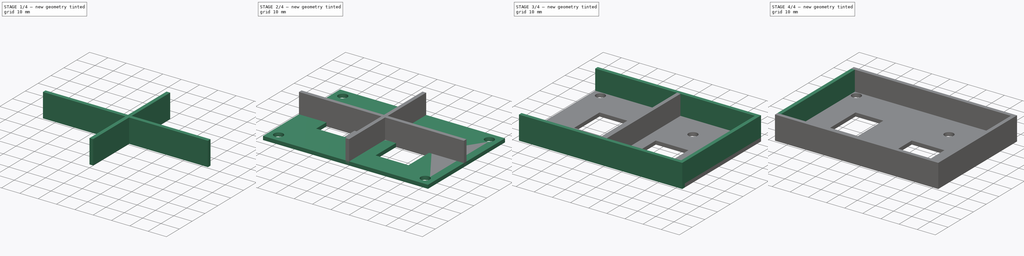
[diagram: build sequence overview — one tinted view per stage of 4, left to right]
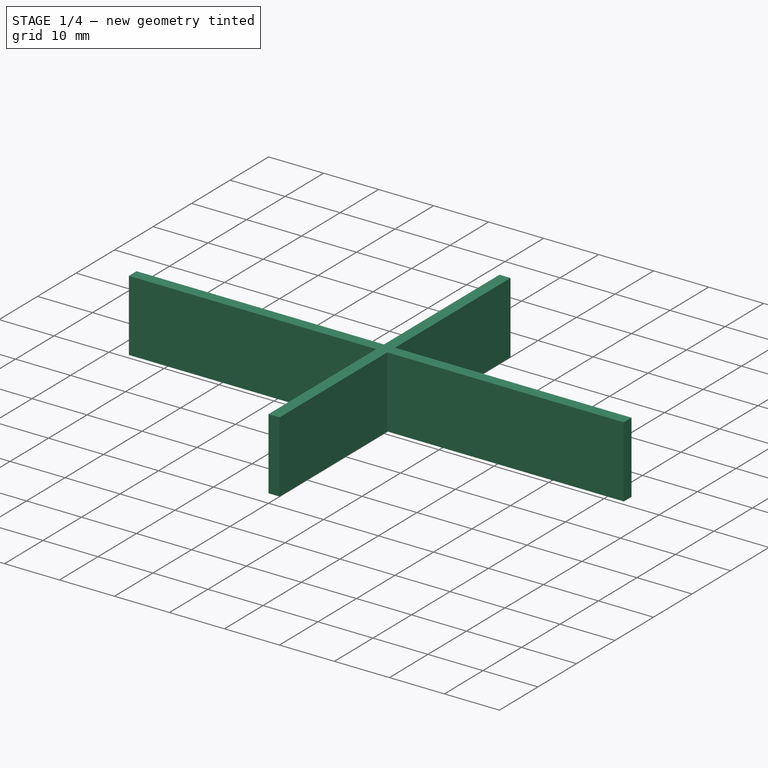
[diagram: stage 1 of 4 — iso view after this stage's code; geometry added in this stage tinted green]
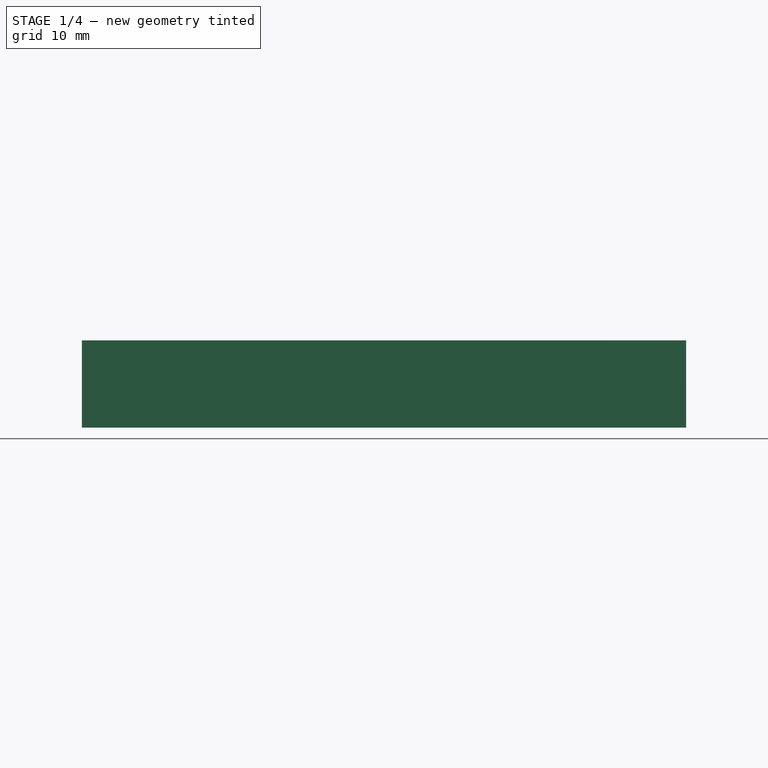
[diagram: stage 1 of 4 — front view after this stage's code; geometry added in this stage tinted green]
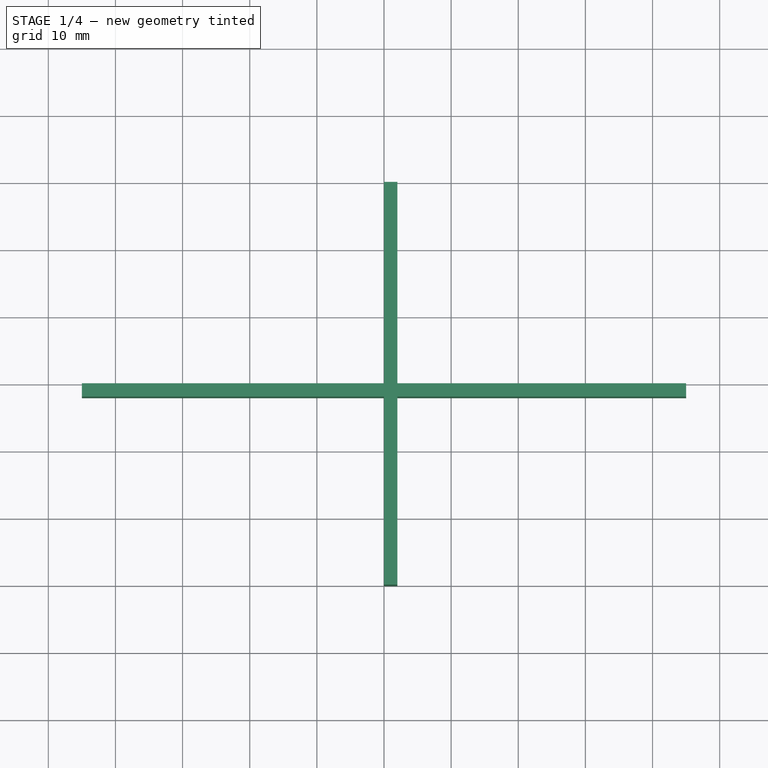
[diagram: stage 1 of 4 — top view after this stage's code; geometry added in this stage tinted green]
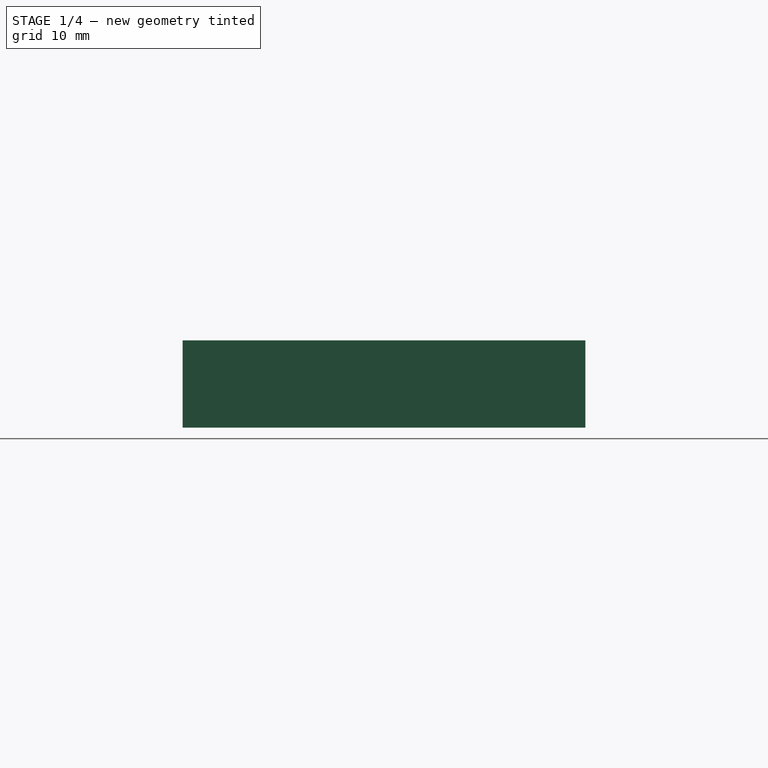
[diagram: stage 1 of 4 — right view after this stage's code; geometry added in this stage tinted green]
FCSTD DOCUMENT  (FreeCAD 0.19R24291 (Git))
Label: 60034717-test(ฝาบน)
License: All rights reserved
LicenseURL: http://en.wikipedia.org/wiki/All_rights_reserved
objects: Sketcher::SketchObject×5, PartDesign::Pad×5, PartDesign::Body×5, Part::MultiFuse×5
note: 25 computed .brp shape members not serialized (recipe doc carries the construction recipe); baked Part::Feature solids carry a one-line shape summary decoded from their .brp

FEATURE [Sketcher::SketchObject] Sketch003
  FullyConstrained = true
  MapMode = 5
  Placement = pos=(0,0,0) rot=(1,0,0;1.5708rad)
  Support = -> [XZ_Plane003]
  sketch-geometry (4):
    g0: LineSegment StartX=-45 StartY=13 StartZ=0 EndX=45 EndY=13 EndZ=0
    g1: LineSegment StartX=45 StartY=13 StartZ=0 EndX=45 EndY=0 EndZ=0
    g2: LineSegment StartX=45 StartY=0 StartZ=0 EndX=-45 EndY=0 EndZ=0
    g3: LineSegment StartX=-45 StartY=0 StartZ=0 EndX=-45 EndY=13 EndZ=0
  constraints (11):
    c: Coincident(g0,g1)
    c: Coincident(g1,g2)
    c: Coincident(g2,g3)
    c: Coincident(g3,g0)
    c: Horizontal(g0)
    c: Vertical(g1)
    c: Vertical(g3)
    c: DistanceY(g3,g3) = 13
    c: DistanceX(g0,g0) = 90
    c: Symmetric(g2,g1,g-2)
    c: PointOnObject(g2,g-1)
FEATURE [PartDesign::Pad] Pad003
  Direction = (1,1,1)
  Length = 2
  Length2 = 0
  Placement = pos=(0,0,0) rot=(1,0,0;1.5708rad)
  Profile = -> Sketch003
  Type = 0
FEATURE [Sketcher::SketchObject] Sketch004
  FullyConstrained = true
  MapMode = 5
  Placement = pos=(0,0,0) rot=(0.57735,0.57735,0.57735;2.0944rad)
  Support = -> [YZ_Plane004]
  sketch-geometry (4):
    g0: LineSegment StartX=-30 StartY=13 StartZ=0 EndX=30 EndY=13 EndZ=0
    g1: LineSegment StartX=30 StartY=13 StartZ=0 EndX=30 EndY=0 EndZ=0
    g2: LineSegment StartX=30 StartY=0 StartZ=0 EndX=-30 EndY=0 EndZ=0
    g3: LineSegment StartX=-30 StartY=0 StartZ=0 EndX=-30 EndY=13 EndZ=0
  constraints (11):
    c: Coincident(g0,g1)
    c: Coincident(g1,g2)
    c: Coincident(g2,g3)
    c: Coincident(g3,g0)
    c: Horizontal(g2)
    c: Vertical(g1)
    c: Vertical(g3)
    c: DistanceY(g3,g3) = 13
    c: DistanceX(g0,g0) = 60
    c: PointOnObject(g2,g-1)
    c: Symmetric(g0,g0,g-2)
FEATURE [PartDesign::Pad] Pad004
  Direction = (1,1,1)
  Length = 2
  Length2 = 0
  Placement = pos=(0,0,0) rot=(0.57735,0.57735,0.57735;2.0944rad)
  Profile = -> Sketch004
  Type = 0
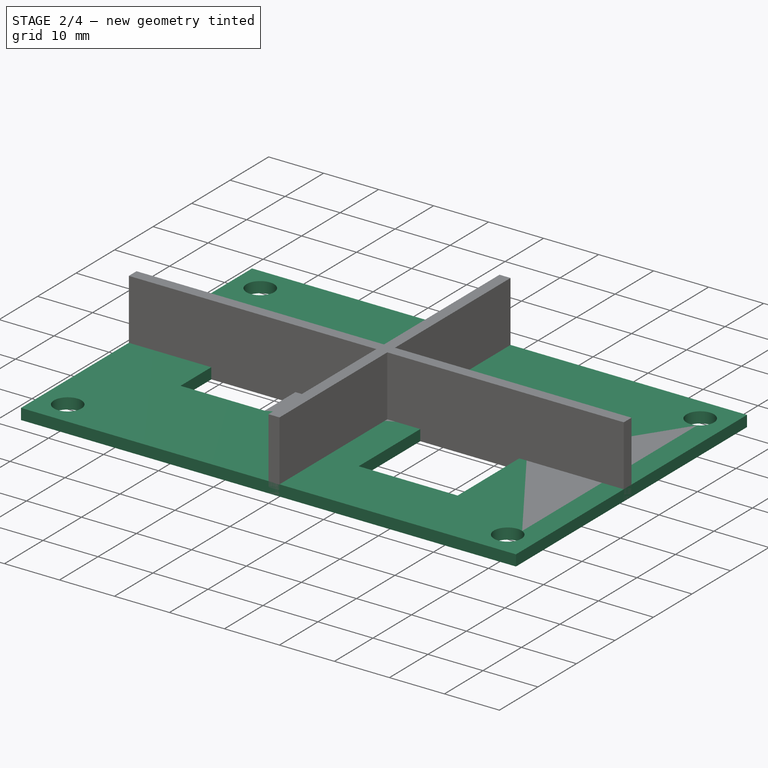
[diagram: stage 2 of 4 — iso view after this stage's code; geometry added in this stage tinted green]
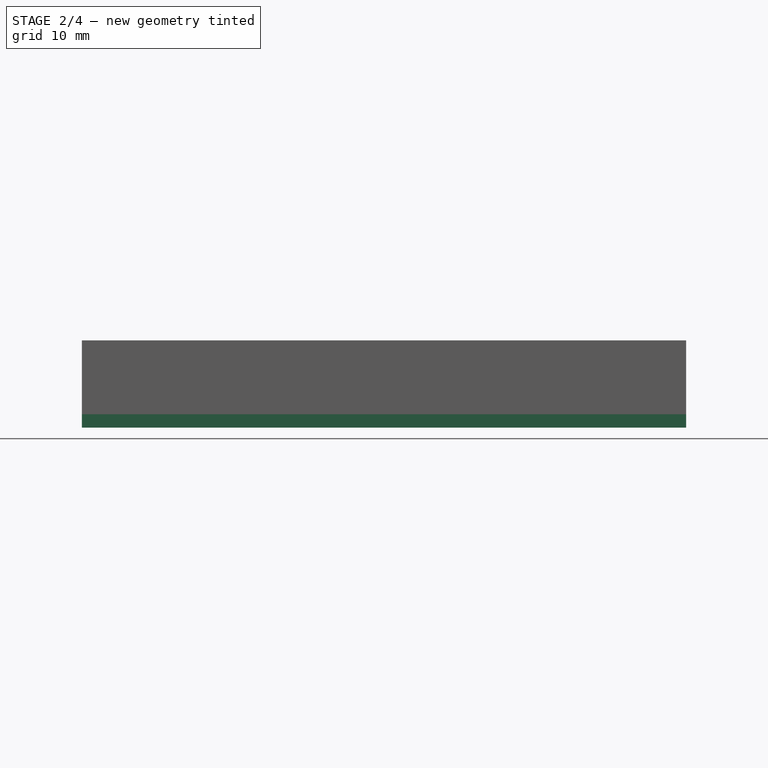
[diagram: stage 2 of 4 — front view after this stage's code; geometry added in this stage tinted green]
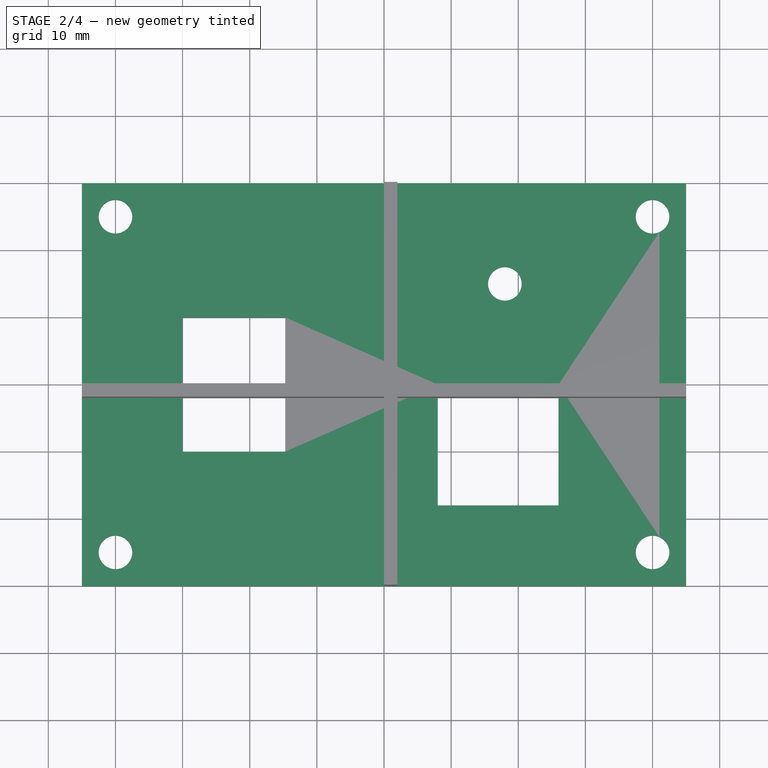
[diagram: stage 2 of 4 — top view after this stage's code; geometry added in this stage tinted green]
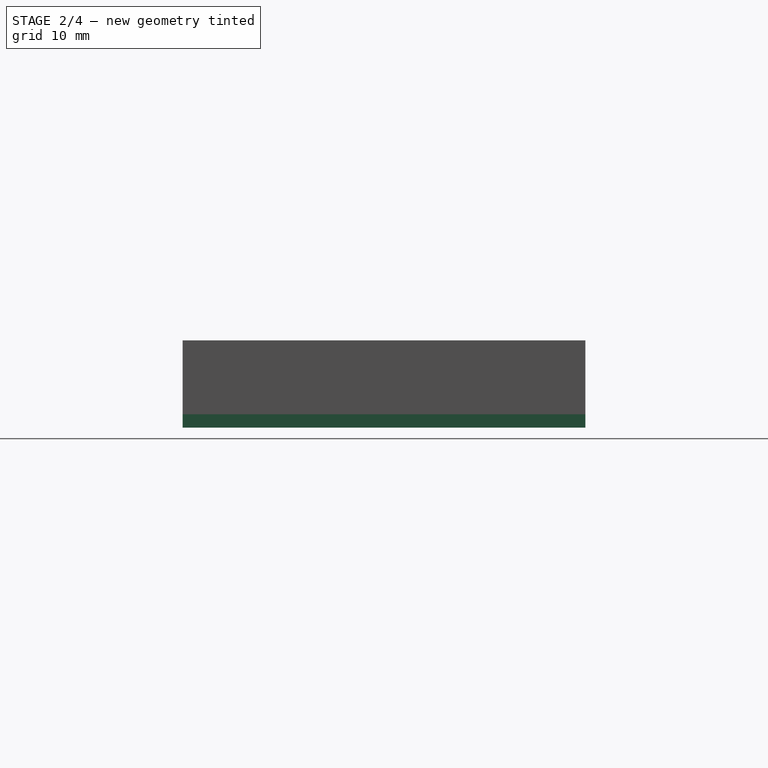
[diagram: stage 2 of 4 — right view after this stage's code; geometry added in this stage tinted green]
FEATURE [Sketcher::SketchObject] Sketch
  FullyConstrained = true
  MapMode = 5
  Support = -> [XY_Plane]
  sketch-geometry (17):
    g0: LineSegment StartX=-45 StartY=30 StartZ=0 EndX=45 EndY=30 EndZ=0
    g1: LineSegment StartX=45 StartY=30 StartZ=0 EndX=45 EndY=-30 EndZ=0
    g2: LineSegment StartX=45 StartY=-30 StartZ=0 EndX=-45 EndY=-30 EndZ=0
    g3: LineSegment StartX=-45 StartY=-30 StartZ=0 EndX=-45 EndY=30 EndZ=0
    g4: Circle CenterX=-40 CenterY=25 CenterZ=0 NormalX=0 NormalY=0 NormalZ=1 AngleXU=0 Radius=2.5
    g5: Circle CenterX=-40 CenterY=-25 CenterZ=0 NormalX=0 NormalY=0 NormalZ=1 AngleXU=0 Radius=2.5
    g6: Circle CenterX=40 CenterY=-25 CenterZ=0 NormalX=0 NormalY=0 NormalZ=1 AngleXU=0 Radius=2.5
    g7: Circle CenterX=40 CenterY=25 CenterZ=0 NormalX=0 NormalY=0 NormalZ=1 AngleXU=0 Radius=2.5
    g8: LineSegment StartX=8 StartY=0 StartZ=0 EndX=26 EndY=0 EndZ=0
    g9: LineSegment StartX=26 StartY=0 StartZ=0 EndX=26 EndY=-18 EndZ=0
    g10: LineSegment StartX=26 StartY=-18 StartZ=0 EndX=8 EndY=-18 EndZ=0
    g11: LineSegment StartX=8 StartY=-18 StartZ=0 EndX=8 EndY=0 EndZ=0
    g12: Circle CenterX=18 CenterY=15 CenterZ=0 NormalX=0 NormalY=0 NormalZ=1 AngleXU=0 Radius=2.5
    g13: LineSegment StartX=-30 StartY=10 StartZ=0 EndX=-14.7 EndY=10 EndZ=0
    g14: LineSegment StartX=-14.7 StartY=10 StartZ=0 EndX=-14.7 EndY=-10 EndZ=0
    g15: LineSegment StartX=-14.7 StartY=-10 StartZ=0 EndX=-30 EndY=-10 EndZ=0
    g16: LineSegment StartX=-30 StartY=-10 StartZ=0 EndX=-30 EndY=10 EndZ=0
  constraints (46):
    c: Coincident(g0,g1)
    c: Coincident(g1,g2)
    c: Coincident(g2,g3)
    c: Coincident(g3,g0)
    c: Horizontal(g0)
    c: Vertical(g1)
    c: DistanceX(g0,g0) = 90
    c: DistanceY(g1,g1) = 60
    c: Symmetric(g0,g2,g-1)
    c: Symmetric(g2,g1,g-2)
    c: Equal(g6,g7)
    c: Equal(g7,g4)
    c: Equal(g4,g5)
    c: DistanceX(g0,g4) = 5
    c: DistanceY(g4,g0) = 5
    c: Symmetric(g4,g7,g-2)
    c: Symmetric(g4,g5,g-1)
    c: Symmetric(g7,g6,g-1)
    c: Diameter(g4) = 5
    c: Coincident(g8,g9)
    c: Coincident(g9,g10)
    c: Coincident(g10,g11)
    c: Coincident(g11,g8)
    c: Horizontal(g8)
    c: Horizontal(g10)
    c: Vertical(g9)
    c: Vertical(g11)
    c: DistanceX(g8,g8) = 18
    c: DistanceY(g9,g9) = 18
    c: DistanceX(g2,g10) = 53
    c: DistanceY(g1,g9) = 12
    c: DistanceY(g12,g0) = 15
    c: DistanceX(g0,g12) = 63
    c: Diameter(g12) = 5
    c: Coincident(g13,g14)
    c: Coincident(g14,g15)
    c: Coincident(g15,g16)
    c: Coincident(g16,g13)
    c: Horizontal(g13)
    c: Horizontal(g15)
    c: Vertical(g14)
    c: Vertical(g16)
    c: DistanceY(g16,g16) = 20
    c: DistanceX(g13,g13) = 15.3
    c: DistanceX(g2,g15) = 15
    c: DistanceY(g13,g0) = 20
FEATURE [PartDesign::Pad] Pad
  Direction = (1,1,1)
  Length = 2
  Length2 = 0
  Profile = -> Sketch
  Type = 0
FEATURE [PartDesign::Body] Body
  Group = -> [Sketch,Pad]
  Origin = -> Origin
  Tip = -> Pad
FEATURE [Sketcher::SketchObject] Sketch001
  FullyConstrained = true
  MapMode = 5
  Placement = pos=(0,0,0) rot=(1,0,0;1.5708rad)
  Support = -> [XZ_Plane001]
  sketch-geometry (4):
    g0: LineSegment StartX=-45 StartY=13 StartZ=0 EndX=45 EndY=13 EndZ=0
    g1: LineSegment StartX=45 StartY=13 StartZ=0 EndX=45 EndY=0 EndZ=0
    g2: LineSegment StartX=45 StartY=0 StartZ=0 EndX=-45 EndY=-3e-16 EndZ=0
    g3: LineSegment StartX=-45 StartY=-3e-16 StartZ=0 EndX=-45 EndY=13 EndZ=0
  constraints (11):
    c: Coincident(g0,g1)
    c: Coincident(g1,g2)
    c: Coincident(g2,g3)
    c: Coincident(g3,g0)
    c: Horizontal(g0)
    c: Vertical(g1)
    c: Vertical(g3)
    c: DistanceX(g0,g0) = 90
    c: DistanceY(g3,g3) = 13
    c: PointOnObject(g1,g-1)
    c: Symmetric(g2,g1,g-2)
FEATURE [PartDesign::Pad] Pad001
  Direction = (1,1,1)
  Length = 2
  Length2 = 0
  Placement = pos=(0,0,0) rot=(1,0,0;1.5708rad)
  Profile = -> Sketch001
  Type = 0
FEATURE [Sketcher::SketchObject] Sketch002
  FullyConstrained = true
  MapMode = 5
  Placement = pos=(0,0,0) rot=(0.57735,0.57735,0.57735;2.0944rad)
  Support = -> [YZ_Plane002]
  sketch-geometry (4):
    g0: LineSegment StartX=-30 StartY=13 StartZ=0 EndX=30 EndY=13 EndZ=0
    g1: LineSegment StartX=30 StartY=13 StartZ=0 EndX=30 EndY=0 EndZ=0
    g2: LineSegment StartX=30 StartY=0 StartZ=0 EndX=-30 EndY=0 EndZ=0
    g3: LineSegment StartX=-30 StartY=0 StartZ=0 EndX=-30 EndY=13 EndZ=0
  constraints (11):
    c: Coincident(g0,g1)
    c: Coincident(g1,g2)
    c: Coincident(g2,g3)
    c: Coincident(g3,g0)
    c: Horizontal(g0)
    c: Vertical(g1)
    c: Vertical(g3)
    c: PointOnObject(g1,g-1)
    c: DistanceY(g3,g3) = 13
    c: DistanceX(g0,g0) = 60
    c: Symmetric(g2,g1,g-2)
FEATURE [PartDesign::Pad] Pad002
  Direction = (1,1,1)
  Length = 2
  Length2 = 0
  Placement = pos=(0,0,0) rot=(0.57735,0.57735,0.57735;2.0944rad)
  Profile = -> Sketch002
  Type = 0
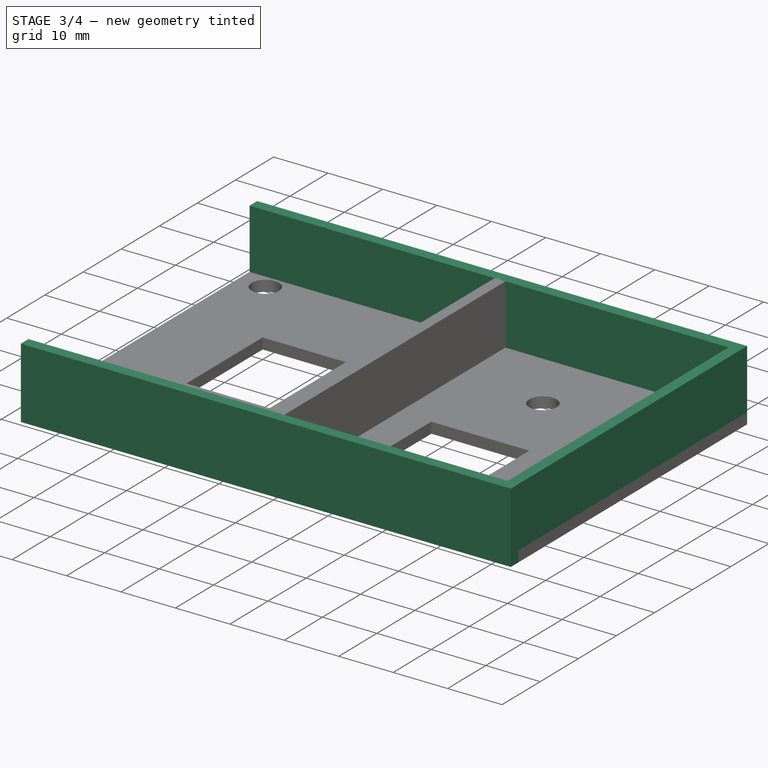
[diagram: stage 3 of 4 — iso view after this stage's code; geometry added in this stage tinted green]
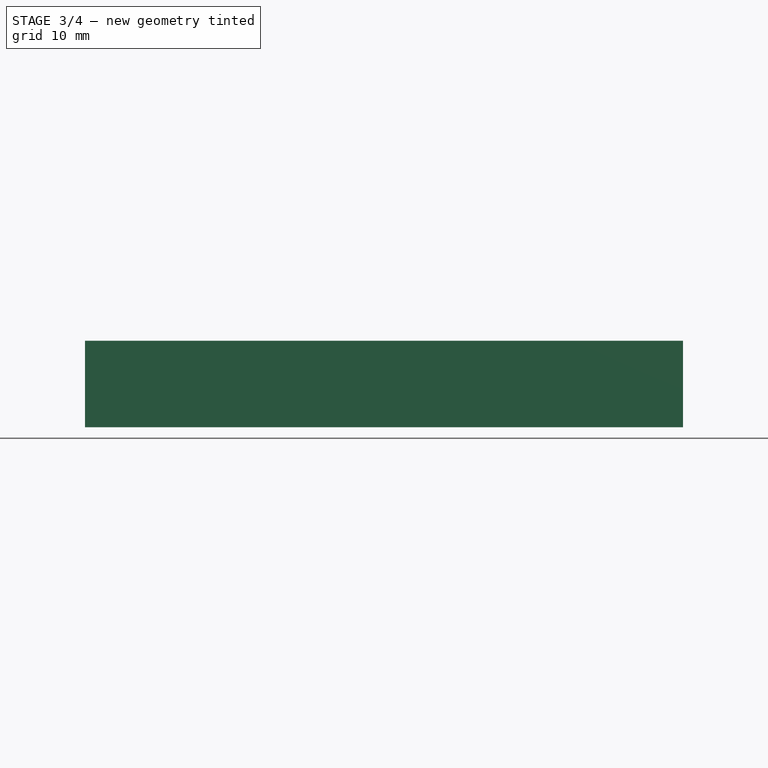
[diagram: stage 3 of 4 — front view after this stage's code; geometry added in this stage tinted green]
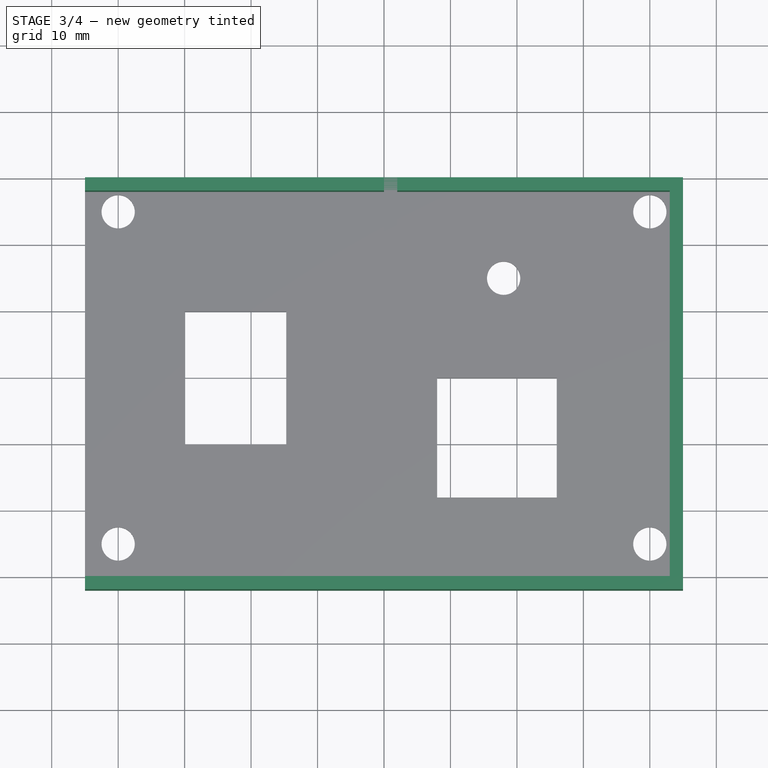
[diagram: stage 3 of 4 — top view after this stage's code; geometry added in this stage tinted green]
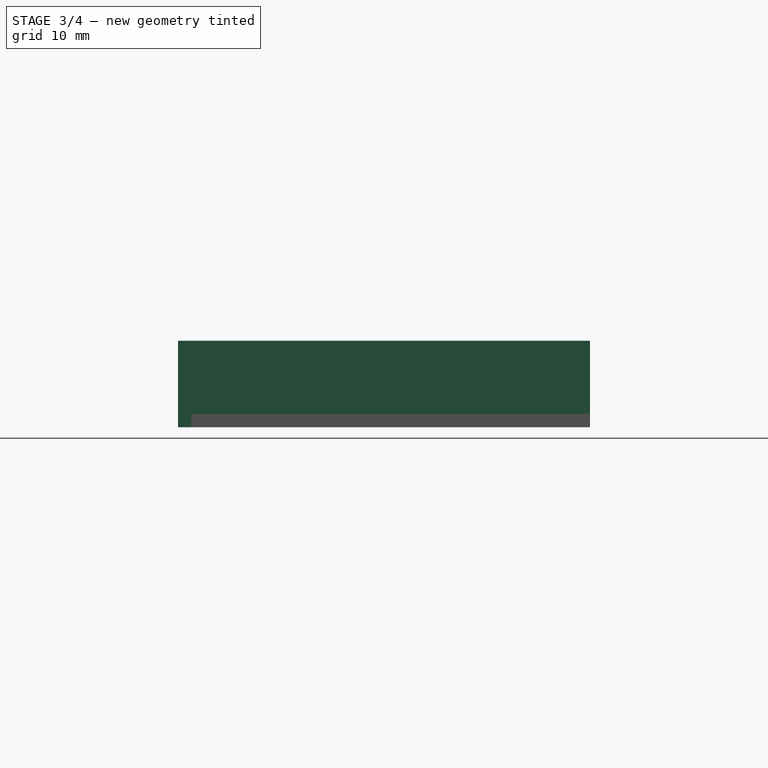
[diagram: stage 3 of 4 — right view after this stage's code; geometry added in this stage tinted green]
FEATURE [PartDesign::Body] Body001
  Group = -> [Sketch001,Pad001]
  Origin = -> Origin001
  Placement = pos=(0,30,0) rot=(0,0,1;0rad)
  Tip = -> Pad001
  expr: .Placement.Base.y = 30
FEATURE [Part::MultiFuse] Fusion
  Shapes = -> [Body,Body001]
FEATURE [PartDesign::Body] Body002
  Group = -> [Sketch002,Pad002]
  Origin = -> Origin002
  Placement = pos=(43,0,0) rot=(0,0,1;0rad)
  Tip = -> Pad002
  expr: .Placement.Base.y = 0
  expr: .Placement.Base.x = 43
FEATURE [Part::MultiFuse] Fusion001
  Shapes = -> [Fusion,Body002,Body,Body001]
FEATURE [PartDesign::Body] Body003
  Group = -> [Sketch003,Pad003]
  Origin = -> Origin003
  Placement = pos=(0,-30,0) rot=(0,0,1;0rad)
  Tip = -> Pad003
  expr: .Placement.Base.y = -30
FEATURE [Part::MultiFuse] Fusion002
  Shapes = -> [Fusion001,Body003]
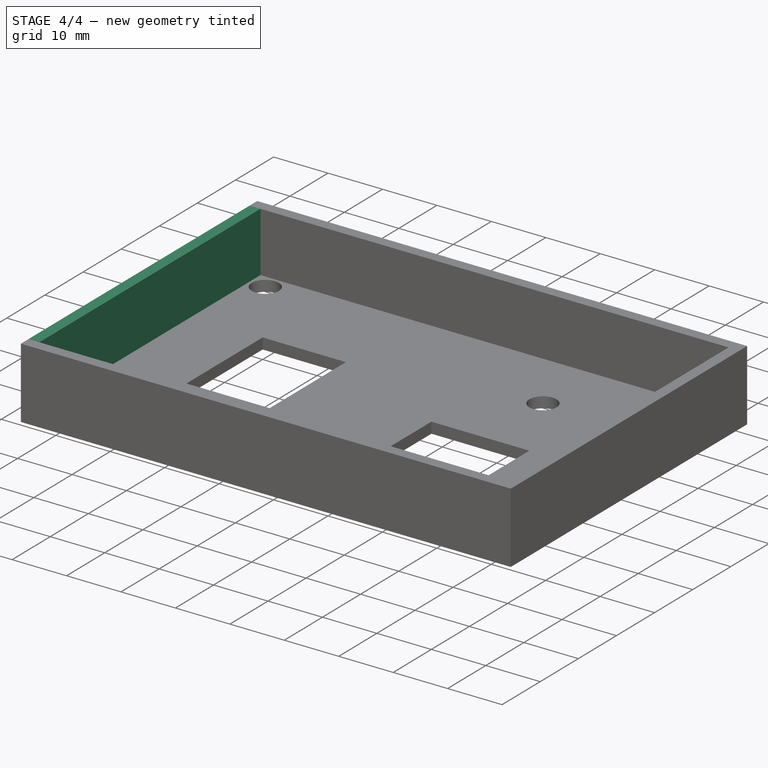
[diagram: stage 4 of 4 — iso view after this stage's code; geometry added in this stage tinted green]
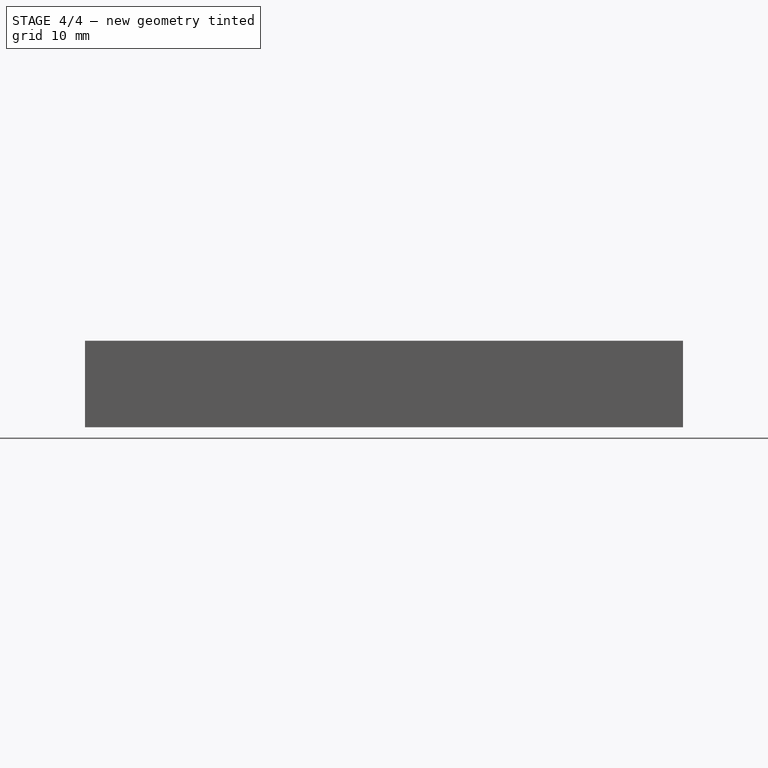
[diagram: stage 4 of 4 — front view after this stage's code; geometry added in this stage tinted green]
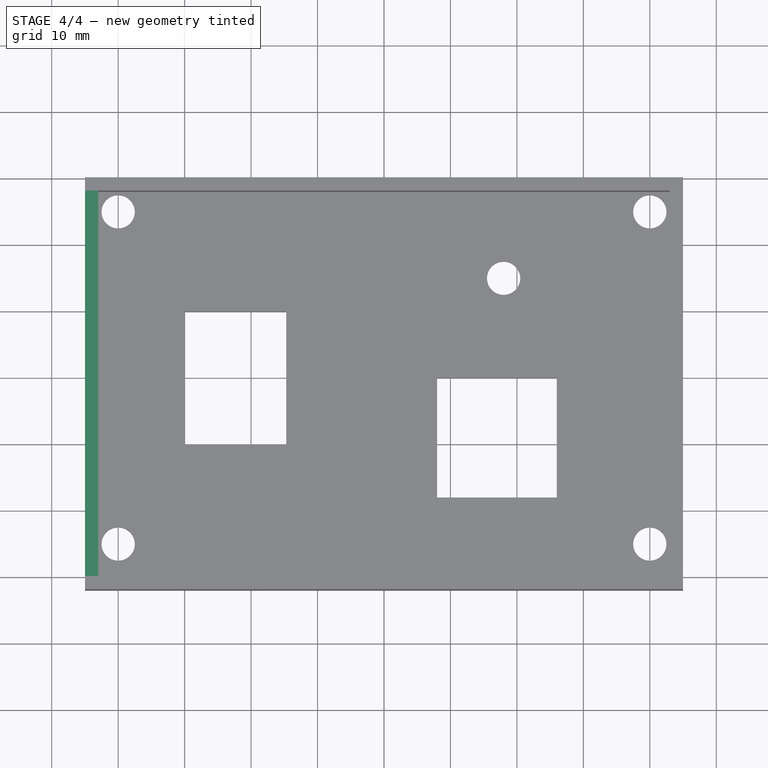
[diagram: stage 4 of 4 — top view after this stage's code; geometry added in this stage tinted green]
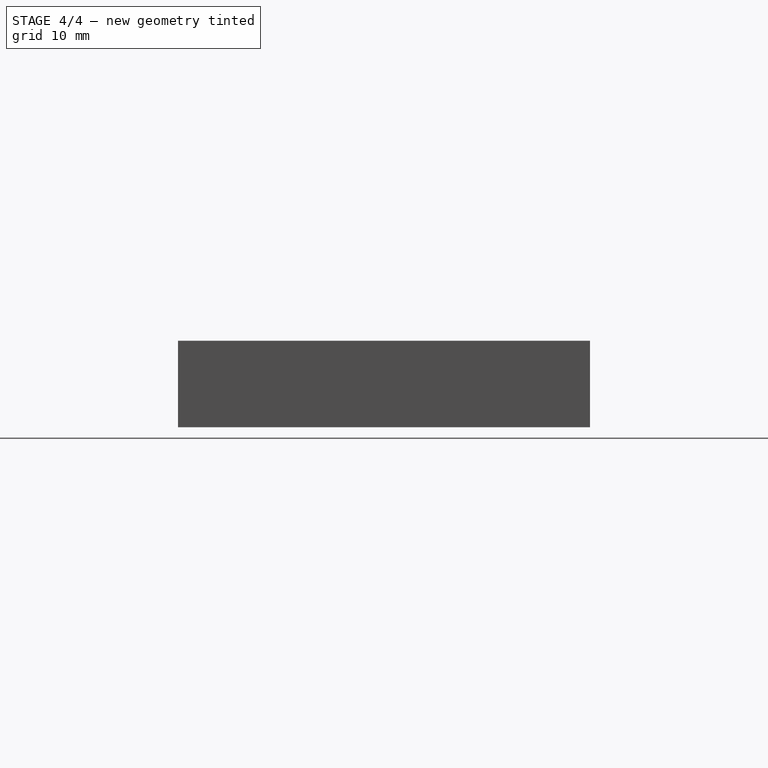
[diagram: stage 4 of 4 — right view after this stage's code; geometry added in this stage tinted green]
FEATURE [PartDesign::Body] Body004
  Group = -> [Sketch004,Pad004]
  Origin = -> Origin004
  Placement = pos=(-45,0,0) rot=(0,0,1;0rad)
  Tip = -> Pad004
  expr: .Placement.Base.z = 0
  expr: .Placement.Base.y = 0
  expr: .Placement.Base.x = -45
FEATURE [Part::MultiFuse] Fusion003
  Shapes = -> [Fusion002,Body004]
FEATURE [Part::MultiFuse] Fusion004
  Shapes = -> [Fusion003,Fusion002,Body004,Fusion001,Body003]
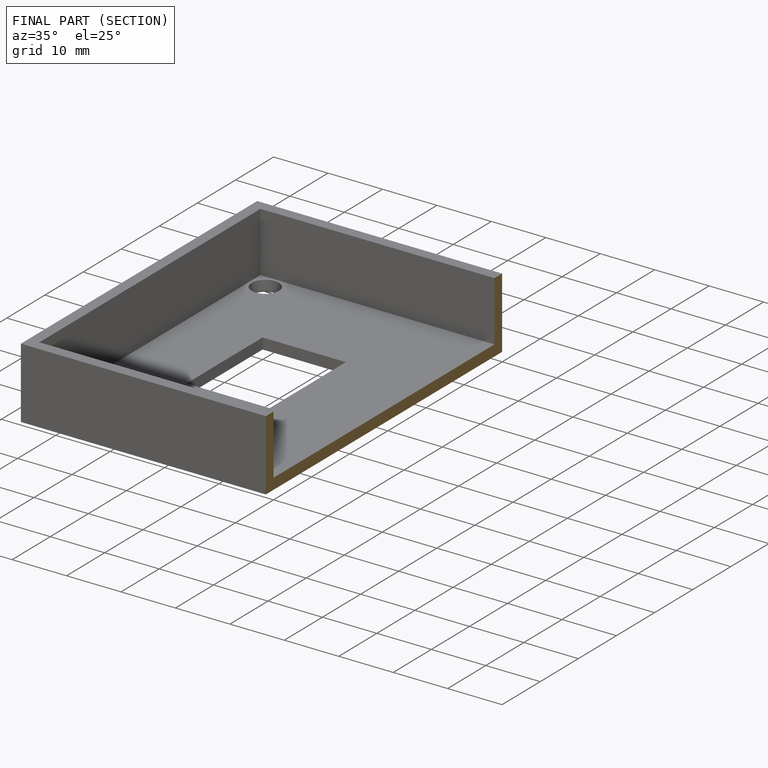
[diagram: finished part — half-section view (interior)]
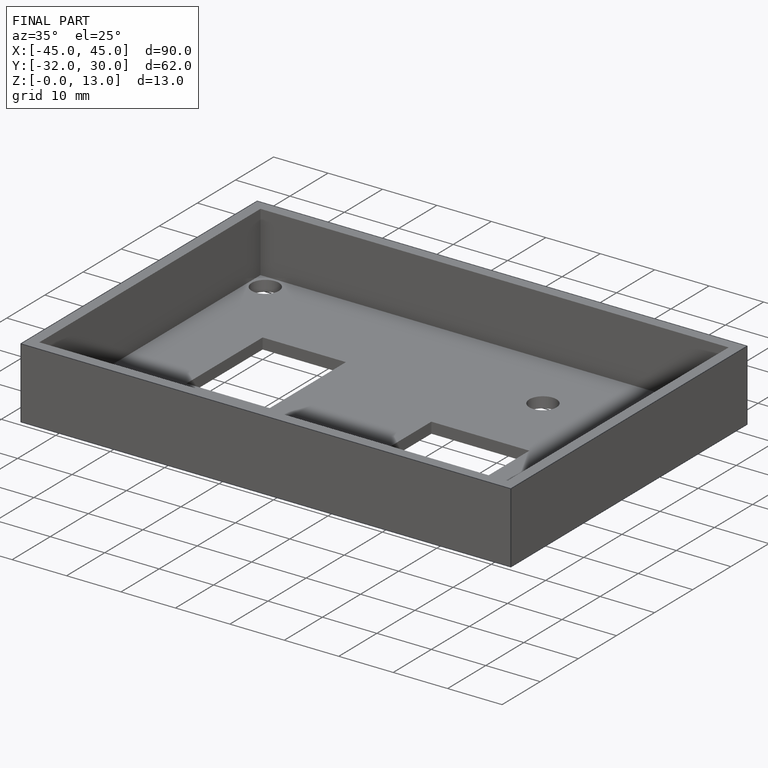
[diagram: finished part — iso view with bounding-box wireframe]
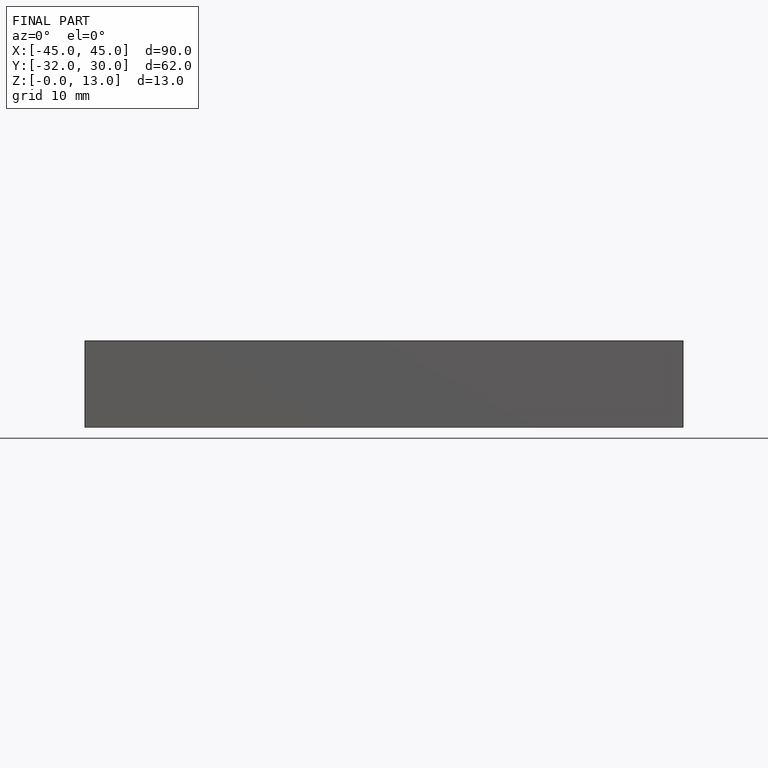
[diagram: finished part — front view with bounding-box wireframe]
